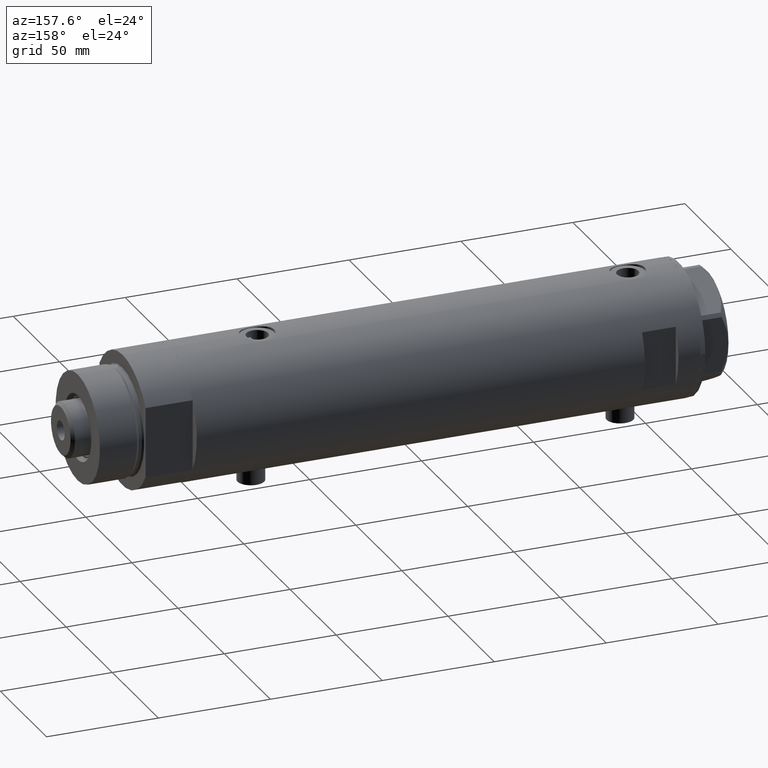
[diagram: clean part render]
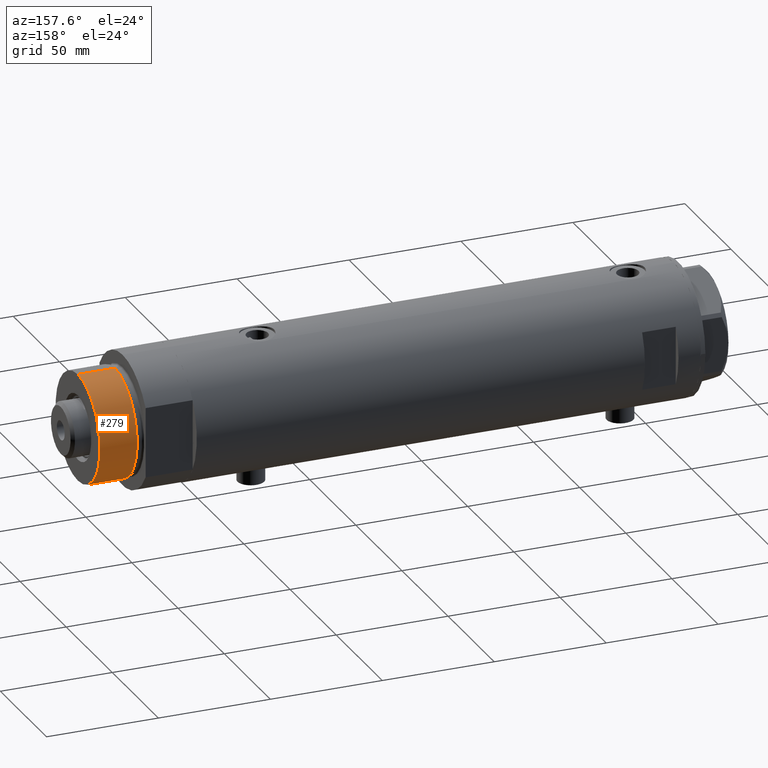
[diagram: same view with one face highlighted and labeled with its STEP entity id]
A machine part, auxiliary view. The second image highlights one B-rep face of the part: STEP entity #279.
In plain terms, the highlighted cylindrical surface (partial cylindrical patch) has radius 24 mm, axis along (-1, -0, 0).
Its self-contained STEP definition (entity closure, byte-faithful):
#182 = DIRECTION ( 'NONE',  ( -1.000000000000000000, 0.000000000000000000, 0.000000000000000000 ) ) ;
#203 = FACE_OUTER_BOUND ( 'NONE', #2954, .T. ) ;
#279 = ADVANCED_FACE ( 'NONE', ( #203 ), #2829, .T. ) ;
#611 = CARTESIAN_POINT ( 'NONE',  ( 0.000000000000000000, 0.000000000000000000, 41.00000000000000000 ) ) ;
#678 = CARTESIAN_POINT ( 'NONE',  ( 24.00000000000000355, 2.939152317953648289E-15, 24.37384048104054557 ) ) ;
#794 = AXIS2_PLACEMENT_3D ( 'NONE', #3751, #1875, #1457 ) ;
#871 = CIRCLE ( 'NONE', #794, 24.00000000000000355 ) ;
#972 = CARTESIAN_POINT ( 'NONE',  ( 0.000000000000000000, 0.000000000000000000, 24.37384048104054557 ) ) ;
#1262 = CARTESIAN_POINT ( 'NONE',  ( 24.00000000000000355, 2.939152317953648289E-15, 41.00000000000000000 ) ) ;
#1277 = ORIENTED_EDGE ( 'NONE', *, *, #1306, .F. ) ;
#1306 = EDGE_CURVE ( 'NONE', #4581, #3602, #2003, .T. ) ;
#1441 = CARTESIAN_POINT ( 'NONE',  ( -24.00000000000000355, 0.000000000000000000, 41.00000000000000000 ) ) ;
#1457 = DIRECTION ( 'NONE',  ( 1.000000000000000000, 0.000000000000000000, 0.000000000000000000 ) ) ;
#1553 = CIRCLE ( 'NONE', #3889, 24.00000000000000355 ) ;
#1791 = VECTOR ( 'NONE', #3492, 1000.000000000000000 ) ;
#1875 = DIRECTION ( 'NONE',  ( 0.000000000000000000, 0.000000000000000000, 1.000000000000000000 ) ) ;
#2001 = CARTESIAN_POINT ( 'NONE',  ( -24.00000000000000355, 0.000000000000000000, 24.37384048104054557 ) ) ;
#2003 = LINE ( 'NONE', #3056, #3804 ) ;
#2192 = ORIENTED_EDGE ( 'NONE', *, *, #4396, .T. ) ;
#2369 = LINE ( 'NONE', #1262, #1791 ) ;
#2410 = ORIENTED_EDGE ( 'NONE', *, *, #2747, .F. ) ;
#2747 = EDGE_CURVE ( 'NONE', #3976, #4581, #871, .T. ) ;
#2784 = DIRECTION ( 'NONE',  ( -0.000000000000000000, -0.000000000000000000, 1.000000000000000000 ) ) ;
#2829 = CYLINDRICAL_SURFACE ( 'NONE', #4485, 24.00000000000000355 ) ;
#2889 = CARTESIAN_POINT ( 'NONE',  ( 24.00000000000000355, 2.939152317953648289E-15, 41.00000000000000000 ) ) ;
#2954 = EDGE_LOOP ( 'NONE', ( #2410, #3203, #2192, #1277 ) ) ;
#3056 = CARTESIAN_POINT ( 'NONE',  ( -24.00000000000000355, 0.000000000000000000, 41.00000000000000000 ) ) ;
#3174 = DIRECTION ( 'NONE',  ( 1.000000000000000000, 0.000000000000000000, 0.000000000000000000 ) ) ;
#3203 = ORIENTED_EDGE ( 'NONE', *, *, #4247, .T. ) ;
#3492 = DIRECTION ( 'NONE',  ( -0.000000000000000000, -0.000000000000000000, -1.000000000000000000 ) ) ;
#3602 = VERTEX_POINT ( 'NONE', #2001 ) ;
#3605 = DIRECTION ( 'NONE',  ( -0.000000000000000000, -0.000000000000000000, -1.000000000000000000 ) ) ;
#3751 = CARTESIAN_POINT ( 'NONE',  ( 0.000000000000000000, 0.000000000000000000, 41.00000000000000000 ) ) ;
#3804 = VECTOR ( 'NONE', #3881, 1000.000000000000000 ) ;
#3881 = DIRECTION ( 'NONE',  ( -0.000000000000000000, -0.000000000000000000, -1.000000000000000000 ) ) ;
#3889 = AXIS2_PLACEMENT_3D ( 'NONE', #972, #2784, #3174 ) ;
#3976 = VERTEX_POINT ( 'NONE', #2889 ) ;
#4016 = VERTEX_POINT ( 'NONE', #678 ) ;
#4247 = EDGE_CURVE ( 'NONE', #3976, #4016, #2369, .T. ) ;
#4396 = EDGE_CURVE ( 'NONE', #4016, #3602, #1553, .T. ) ;
#4485 = AXIS2_PLACEMENT_3D ( 'NONE', #611, #3605, #182 ) ;
#4581 = VERTEX_POINT ( 'NONE', #1441 ) ;